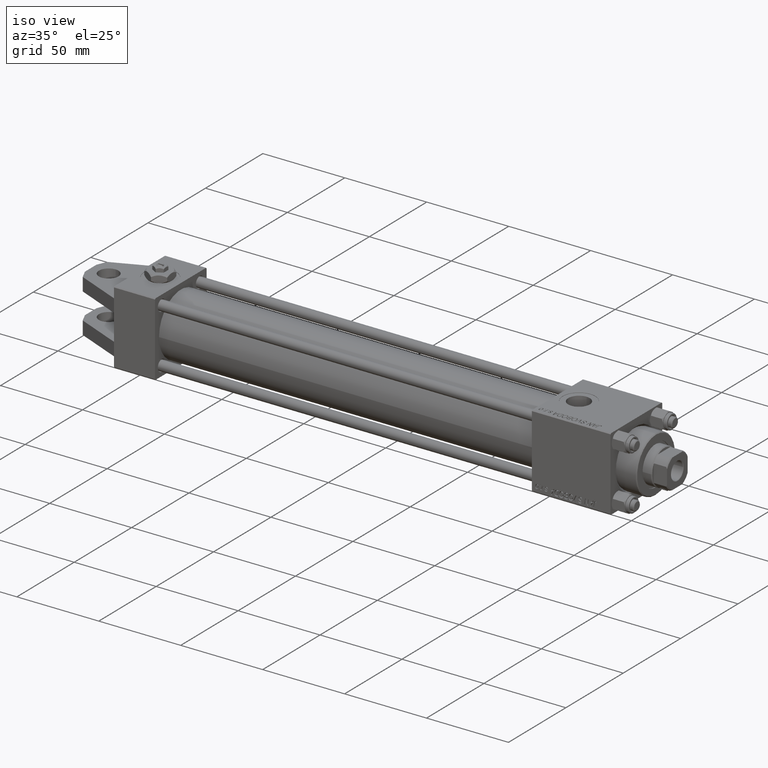
[diagram: clean part render]
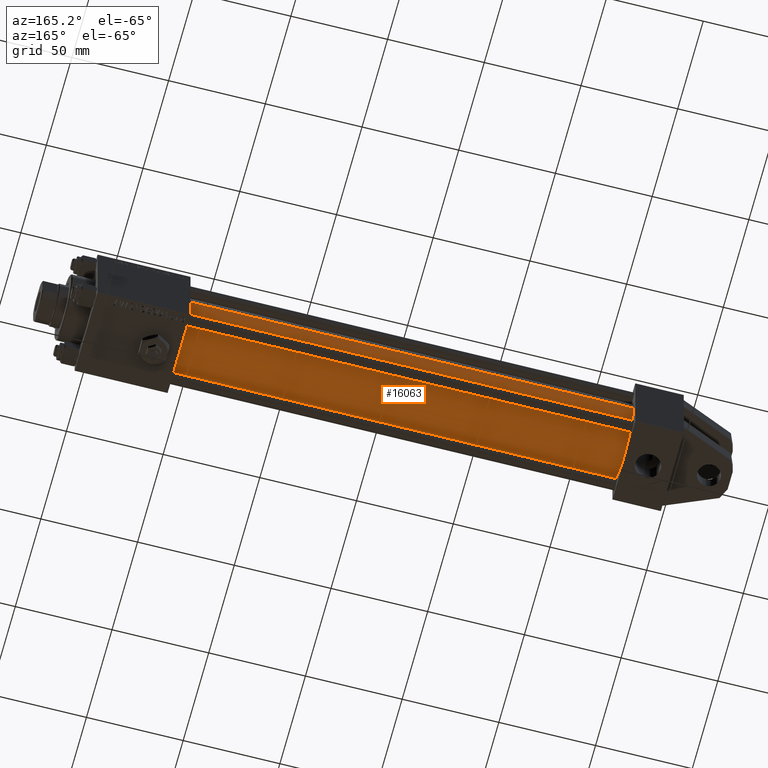
[diagram: tour spotlight — one face highlighted and labeled with its STEP entity id]
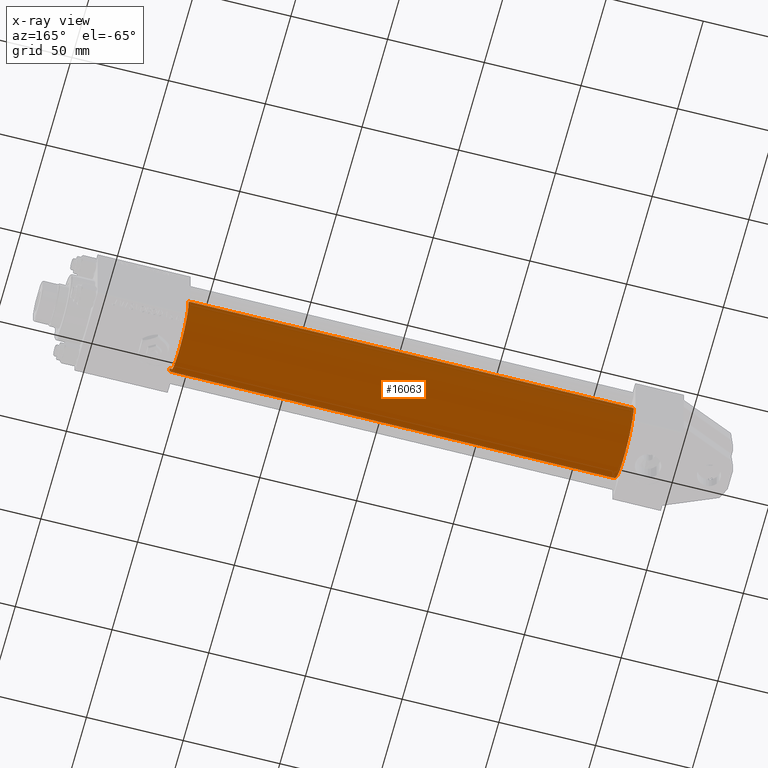
[diagram: x-ray of the same camera — body ghosted, this tour face saturated]
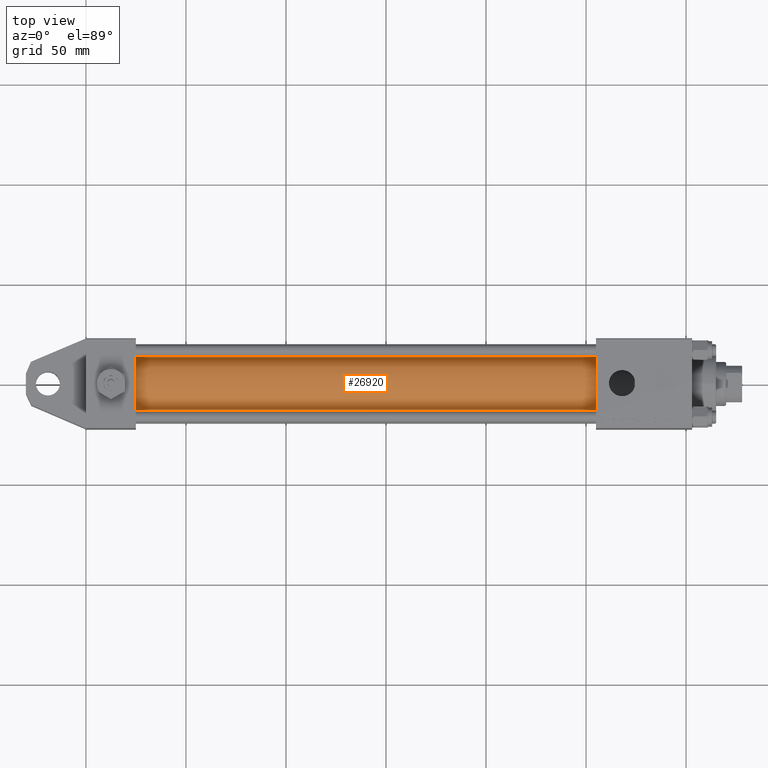
[diagram: tour spotlight — one face highlighted and labeled with its STEP entity id]
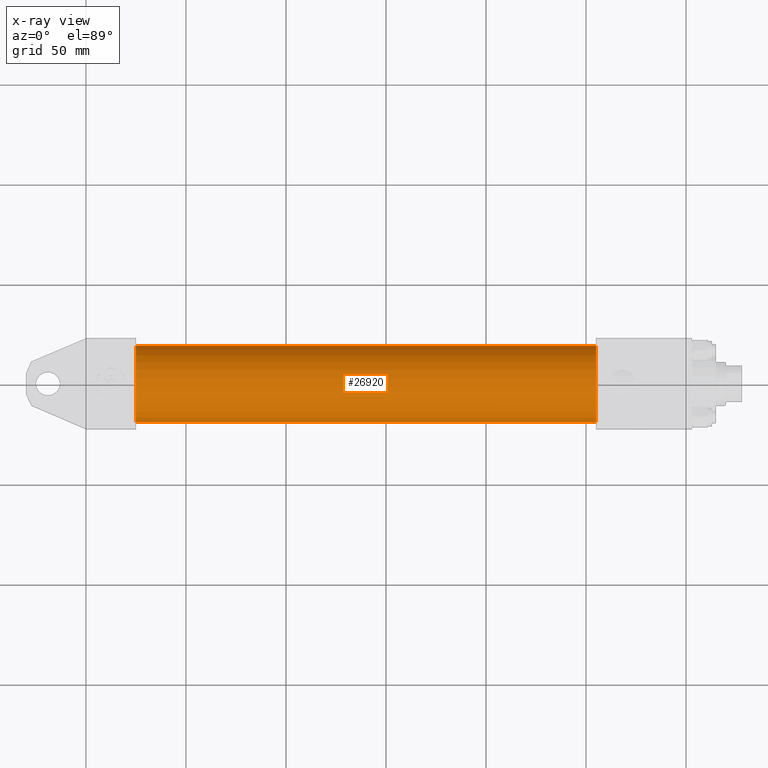
[diagram: x-ray of the same camera — body ghosted, this tour face saturated]
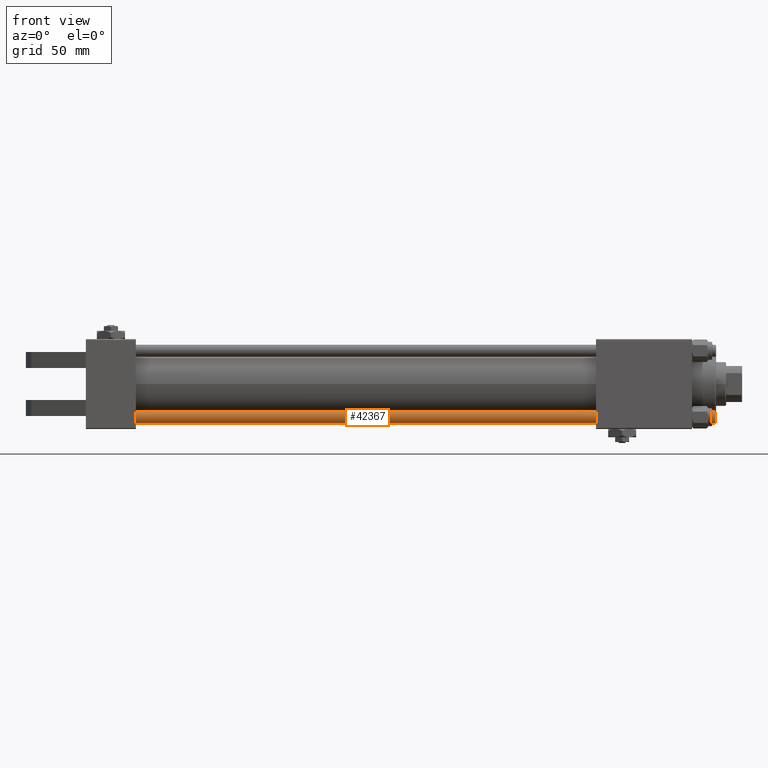
[diagram: tour spotlight — one face highlighted and labeled with its STEP entity id]
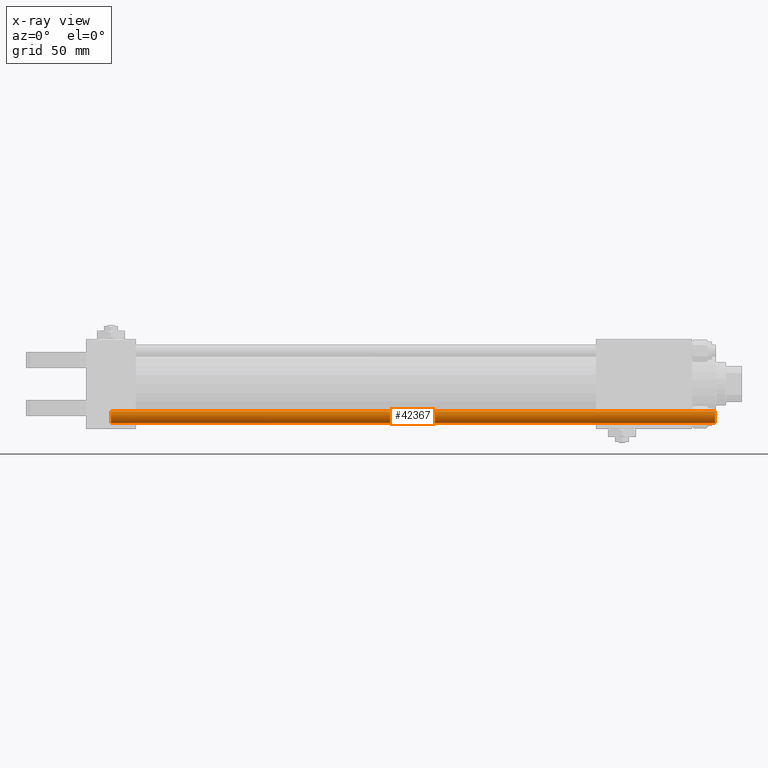
[diagram: x-ray of the same camera — body ghosted, this tour face saturated]
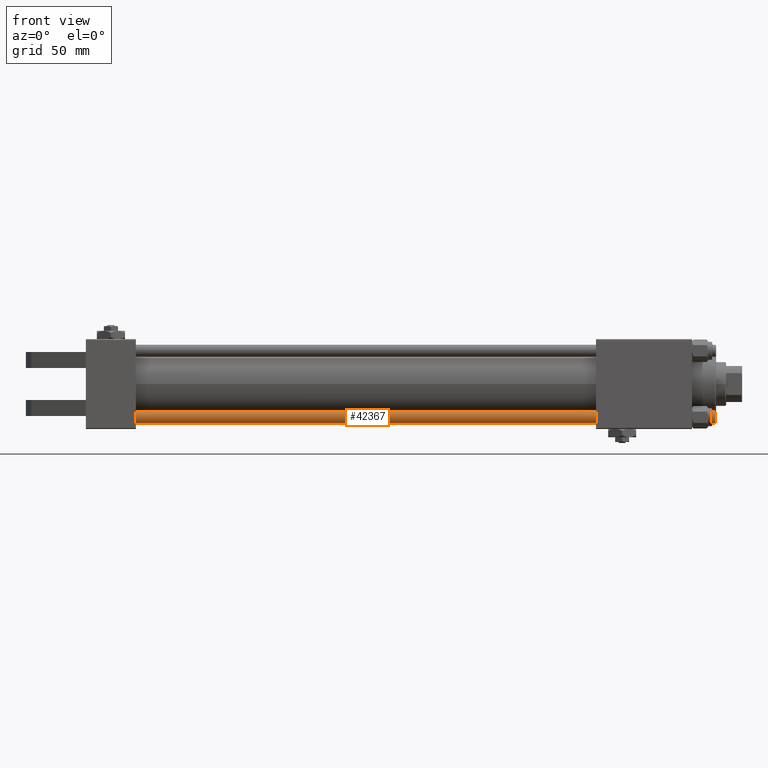
[diagram: tour spotlight — one face highlighted and labeled with its STEP entity id]
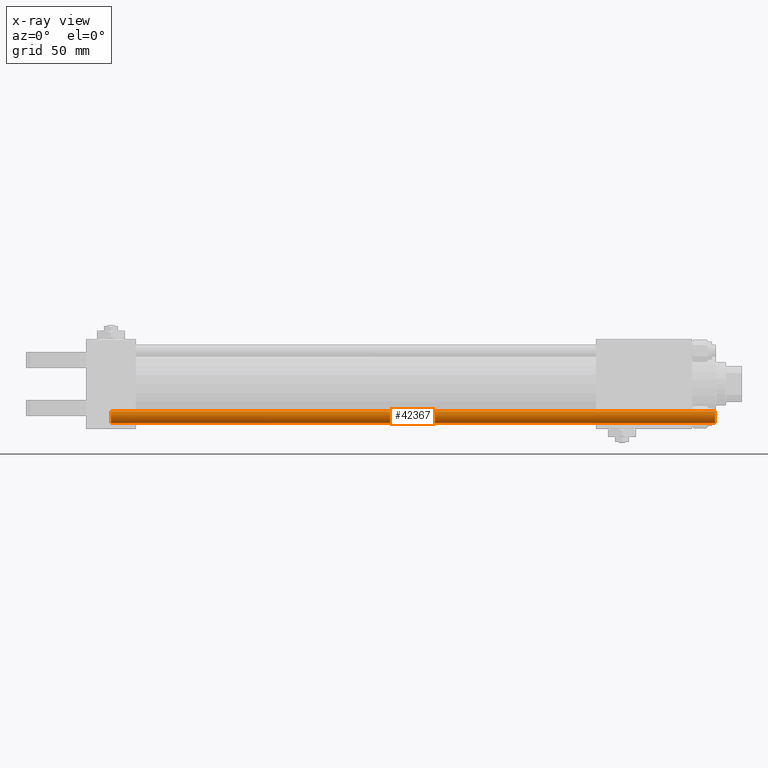
[diagram: x-ray of the same camera — body ghosted, this tour face saturated]
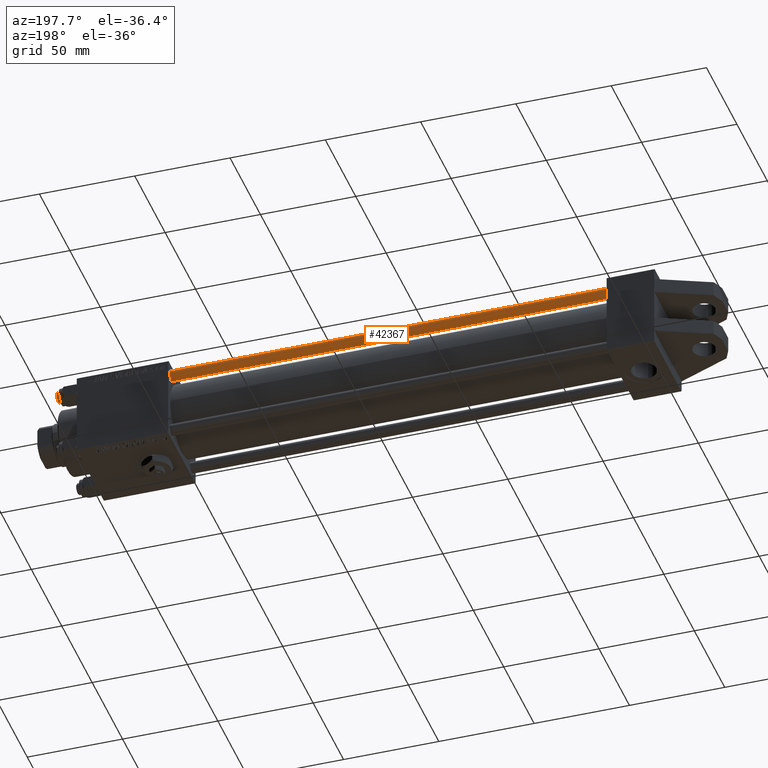
[diagram: tour spotlight — one face highlighted and labeled with its STEP entity id]
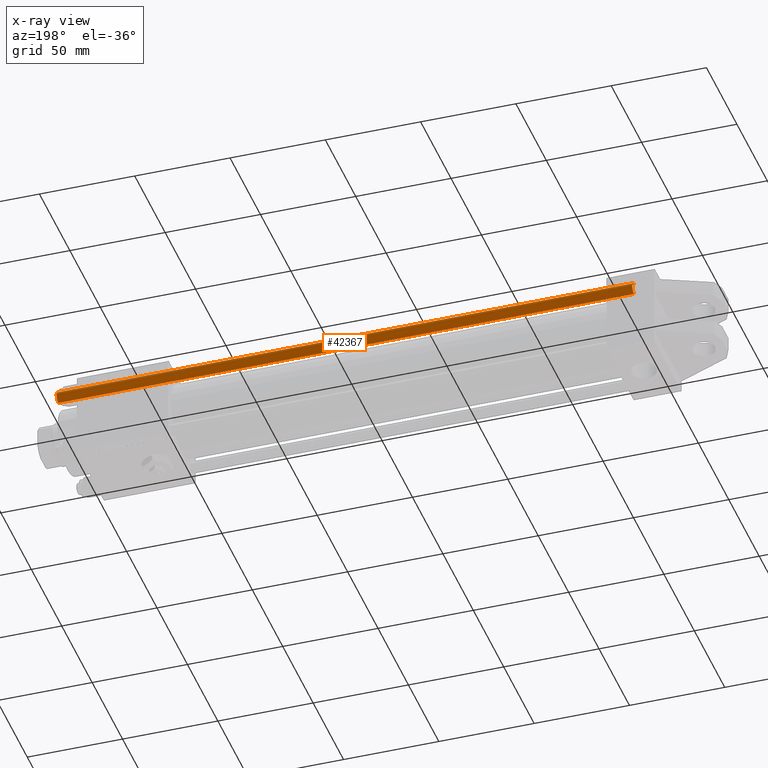
[diagram: x-ray of the same camera — body ghosted, this tour face saturated]
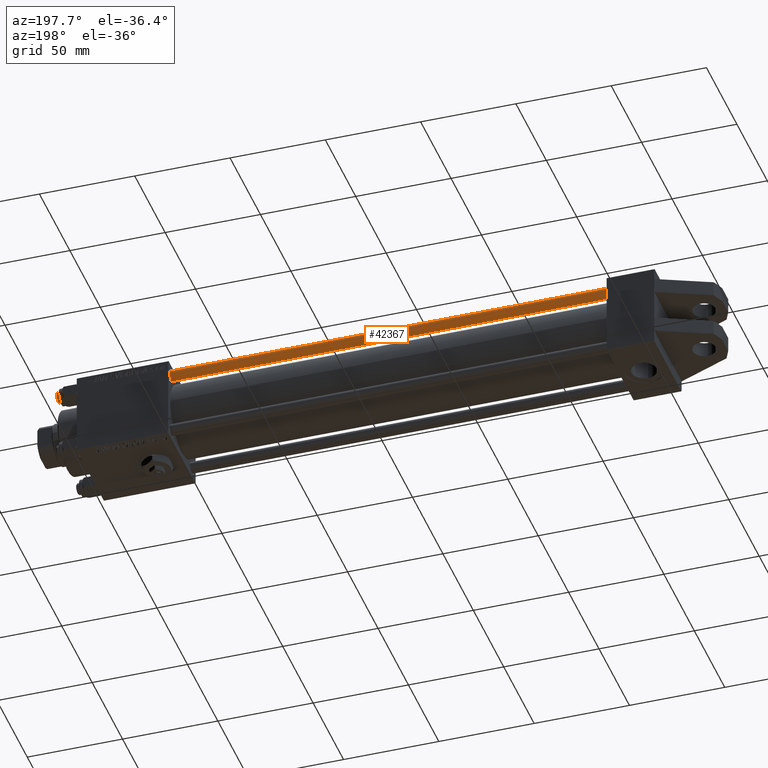
[diagram: tour spotlight — one face highlighted and labeled with its STEP entity id]
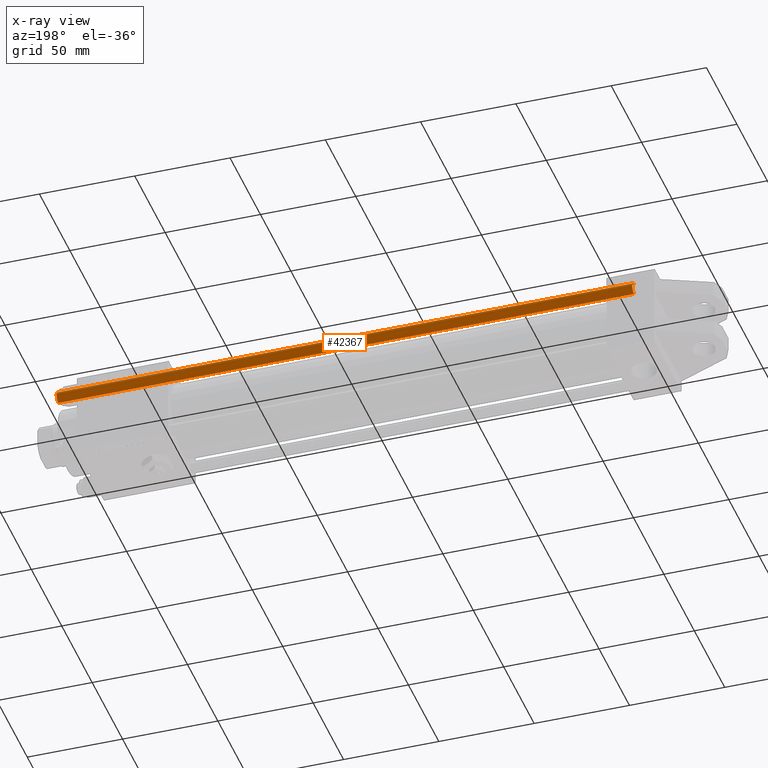
[diagram: x-ray of the same camera — body ghosted, this tour face saturated]
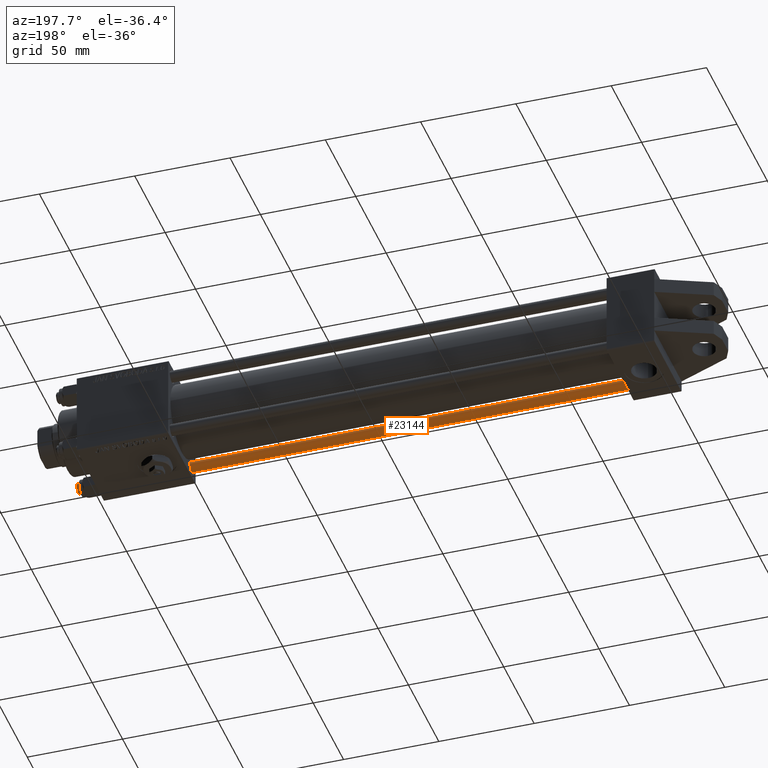
[diagram: tour spotlight — one face highlighted and labeled with its STEP entity id]
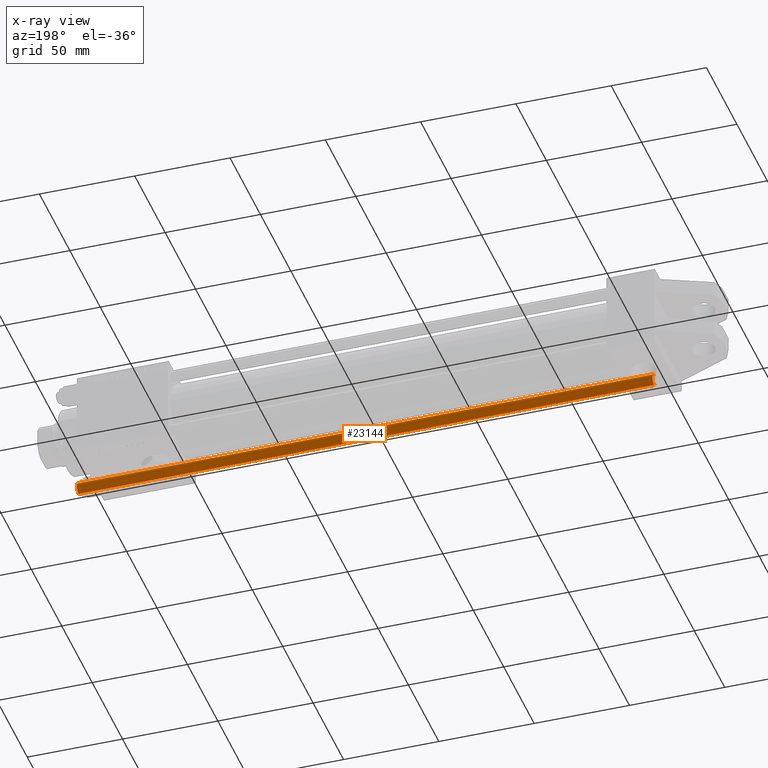
[diagram: x-ray of the same camera — body ghosted, this tour face saturated]
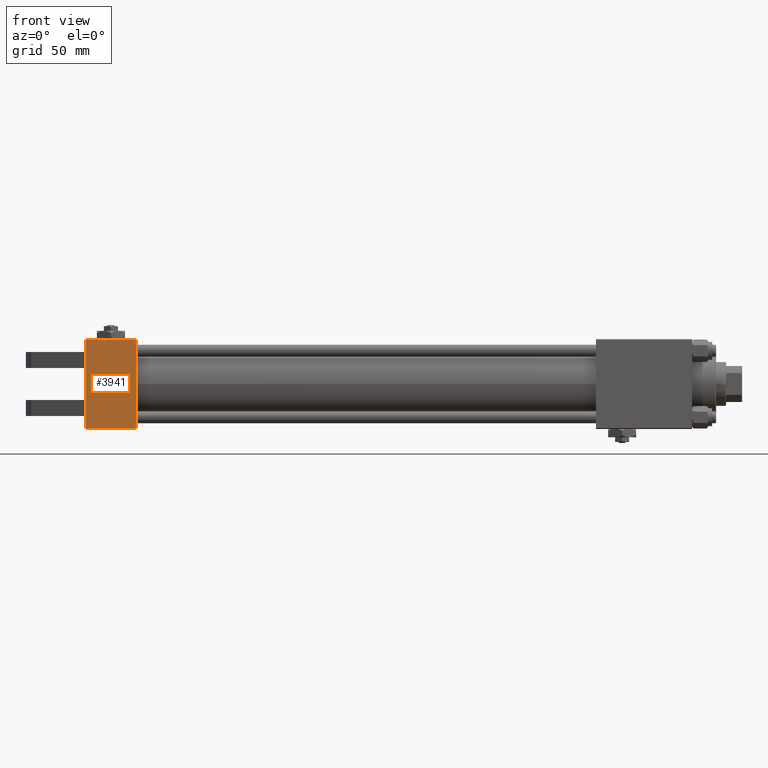
[diagram: tour spotlight — one face highlighted and labeled with its STEP entity id]
A machine part: a face-by-face anatomy tour. The part has 1228 B-rep faces; the first image is the clean iso view, then the 8 largest visible faces are spotlighted one at a time (largest first), each with its STEP entity span.

Face 1 — auxiliary view, entity #16063. An x-ray twin of the same camera follows (body ghosted, this face saturated) — the face is partly hidden behind the body. In plain terms, the highlighted cylindrical surface (partial cylindrical patch) has radius 19 mm, axis along (-1, -0, 0).
Definition (entity closure, byte-faithful):
#719 = VECTOR ( 'NONE', #48449, 1000.000000000000000 ) ;
#1466 = DIRECTION ( 'NONE',  ( -1.000000000000000000, -0.000000000000000000, -0.000000000000000000 ) ) ;
#3086 = DIRECTION ( 'NONE',  ( 1.000000000000000000, 0.000000000000000000, 0.000000000000000000 ) ) ;
#3374 = CARTESIAN_POINT ( 'NONE',  ( 255.0000000000000000, -3.469446951953614189E-15, 19.00000000000000000 ) ) ;
#4272 = CARTESIAN_POINT ( 'NONE',  ( 255.0000000000000000, -3.469446951953614189E-15, 19.00000000000000000 ) ) ;
#4696 = CIRCLE ( 'NONE', #44785, 19.00000000000000000 ) ;
#7952 = EDGE_CURVE ( 'NONE', #48835, #30972, #44279, .T. ) ;
#8276 = DIRECTION ( 'NONE',  ( 1.000000000000000000, -0.000000000000000000, 0.000000000000000000 ) ) ;
#10605 = CARTESIAN_POINT ( 'NONE',  ( 255.0000000000000000, -3.469446951953614189E-15, 0.000000000000000000 ) ) ;
#13182 = VERTEX_POINT ( 'NONE', #22178 ) ;
#15133 = DIRECTION ( 'NONE',  ( 0.000000000000000000, 0.000000000000000000, -1.000000000000000000 ) ) ;
#15384 = CARTESIAN_POINT ( 'NONE',  ( 255.0000000000000000, -3.469446951953614189E-15, 0.000000000000000000 ) ) ;
#16063 = ADVANCED_FACE ( 'NONE', ( #45384 ), #33898, .T. ) ;
#16200 = AXIS2_PLACEMENT_3D ( 'NONE', #15384, #3086, #15133 ) ;
#17607 = AXIS2_PLACEMENT_3D ( 'NONE', #10605, #1466, #21603 ) ;
#20339 = ORIENTED_EDGE ( 'NONE', *, *, #26104, .F. ) ;
#21603 = DIRECTION ( 'NONE',  ( 0.000000000000000000, 0.000000000000000000, 1.000000000000000000 ) ) ;
#22178 = CARTESIAN_POINT ( 'NONE',  ( 24.99999999999999289, -1.142618033573643218E-15, -19.00000000000000000 ) ) ;
#25476 = CARTESIAN_POINT ( 'NONE',  ( 255.0000000000000000, -1.142618033573643218E-15, -19.00000000000000000 ) ) ;
#26104 = EDGE_CURVE ( 'NONE', #51592, #48835, #49567, .T. ) ;
#26853 = ORIENTED_EDGE ( 'NONE', *, *, #7952, .F. ) ;
#27153 = EDGE_LOOP ( 'NONE', ( #20339, #42961, #38797, #26853 ) ) ;
#28152 = DIRECTION ( 'NONE',  ( 0.000000000000000000, 0.000000000000000000, 1.000000000000000000 ) ) ;
#30972 = VERTEX_POINT ( 'NONE', #46152 ) ;
#31310 = LINE ( 'NONE', #47232, #40757 ) ;
#33898 = CYLINDRICAL_SURFACE ( 'NONE', #17607, 19.00000000000000000 ) ;
#35250 = CARTESIAN_POINT ( 'NONE',  ( 24.99999999999999289, -3.469446951953614189E-15, 0.000000000000000000 ) ) ;
#35495 = DIRECTION ( 'NONE',  ( -1.000000000000000000, -0.000000000000000000, -0.000000000000000000 ) ) ;
#36465 = EDGE_CURVE ( 'NONE', #13182, #30972, #4696, .T. ) ;
#38797 = ORIENTED_EDGE ( 'NONE', *, *, #36465, .T. ) ;
#40757 = VECTOR ( 'NONE', #35495, 1000.000000000000000 ) ;
#42961 = ORIENTED_EDGE ( 'NONE', *, *, #44840, .T. ) ;
#44279 = LINE ( 'NONE', #4272, #719 ) ;
#44785 = AXIS2_PLACEMENT_3D ( 'NONE', #35250, #8276, #28152 ) ;
#44840 = EDGE_CURVE ( 'NONE', #51592, #13182, #31310, .T. ) ;
#45384 = FACE_OUTER_BOUND ( 'NONE', #27153, .T. ) ;
#46152 = CARTESIAN_POINT ( 'NONE',  ( 24.99999999999999289, -3.469446951953614189E-15, 19.00000000000000000 ) ) ;
#47232 = CARTESIAN_POINT ( 'NONE',  ( 255.0000000000000000, -1.142618033573643218E-15, -19.00000000000000000 ) ) ;
#48449 = DIRECTION ( 'NONE',  ( -1.000000000000000000, -0.000000000000000000, -0.000000000000000000 ) ) ;
#48835 = VERTEX_POINT ( 'NONE', #3374 ) ;
#49567 = CIRCLE ( 'NONE', #16200, 19.00000000000000000 ) ;
#51592 = VERTEX_POINT ( 'NONE', #25476 ) ;

Face 2 — top view, entity #26920. An x-ray twin of the same camera follows (body ghosted, this face saturated) — the face is partly hidden behind the body. In plain terms, the highlighted cylindrical surface (partial cylindrical patch) has radius 19 mm, axis along (-1, -0, 0).
Definition (entity closure, byte-faithful):
#261 = EDGE_CURVE ( 'NONE', #48835, #51592, #34003, .T. ) ;
#719 = VECTOR ( 'NONE', #48449, 1000.000000000000000 ) ;
#1030 = CARTESIAN_POINT ( 'NONE',  ( 255.0000000000000000, -3.469446951953614189E-15, 0.000000000000000000 ) ) ;
#1069 = ORIENTED_EDGE ( 'NONE', *, *, #7952, .T. ) ;
#2342 = DIRECTION ( 'NONE',  ( 0.000000000000000000, 0.000000000000000000, 1.000000000000000000 ) ) ;
#2550 = ORIENTED_EDGE ( 'NONE', *, *, #44840, .F. ) ;
#2798 = DIRECTION ( 'NONE',  ( 0.000000000000000000, 0.000000000000000000, -1.000000000000000000 ) ) ;
#3374 = CARTESIAN_POINT ( 'NONE',  ( 255.0000000000000000, -3.469446951953614189E-15, 19.00000000000000000 ) ) ;
#4272 = CARTESIAN_POINT ( 'NONE',  ( 255.0000000000000000, -3.469446951953614189E-15, 19.00000000000000000 ) ) ;
#7952 = EDGE_CURVE ( 'NONE', #48835, #30972, #44279, .T. ) ;
#9986 = EDGE_LOOP ( 'NONE', ( #2550, #48520, #1069, #46195 ) ) ;
#10203 = DIRECTION ( 'NONE',  ( 1.000000000000000000, -0.000000000000000000, 0.000000000000000000 ) ) ;
#13118 = AXIS2_PLACEMENT_3D ( 'NONE', #17977, #21647, #2798 ) ;
#13182 = VERTEX_POINT ( 'NONE', #22178 ) ;
#16985 = DIRECTION ( 'NONE',  ( -1.000000000000000000, -0.000000000000000000, -0.000000000000000000 ) ) ;
#17892 = AXIS2_PLACEMENT_3D ( 'NONE', #1030, #16985, #48854 ) ;
#17977 = CARTESIAN_POINT ( 'NONE',  ( 255.0000000000000000, -3.469446951953614189E-15, 0.000000000000000000 ) ) ;
#21647 = DIRECTION ( 'NONE',  ( 1.000000000000000000, 0.000000000000000000, 0.000000000000000000 ) ) ;
#22178 = CARTESIAN_POINT ( 'NONE',  ( 24.99999999999999289, -1.142618033573643218E-15, -19.00000000000000000 ) ) ;
#25476 = CARTESIAN_POINT ( 'NONE',  ( 255.0000000000000000, -1.142618033573643218E-15, -19.00000000000000000 ) ) ;
#26920 = ADVANCED_FACE ( 'NONE', ( #44688 ), #45207, .T. ) ;
#30972 = VERTEX_POINT ( 'NONE', #46152 ) ;
#31310 = LINE ( 'NONE', #47232, #40757 ) ;
#34003 = CIRCLE ( 'NONE', #13118, 19.00000000000000000 ) ;
#34886 = EDGE_CURVE ( 'NONE', #30972, #13182, #43903, .T. ) ;
#35495 = DIRECTION ( 'NONE',  ( -1.000000000000000000, -0.000000000000000000, -0.000000000000000000 ) ) ;
#40757 = VECTOR ( 'NONE', #35495, 1000.000000000000000 ) ;
#43903 = CIRCLE ( 'NONE', #50569, 19.00000000000000000 ) ;
#44279 = LINE ( 'NONE', #4272, #719 ) ;
#44688 = FACE_OUTER_BOUND ( 'NONE', #9986, .T. ) ;
#44840 = EDGE_CURVE ( 'NONE', #51592, #13182, #31310, .T. ) ;
#45207 = CYLINDRICAL_SURFACE ( 'NONE', #17892, 19.00000000000000000 ) ;
#46007 = CARTESIAN_POINT ( 'NONE',  ( 24.99999999999999289, -3.469446951953614189E-15, 0.000000000000000000 ) ) ;
#46152 = CARTESIAN_POINT ( 'NONE',  ( 24.99999999999999289, -3.469446951953614189E-15, 19.00000000000000000 ) ) ;
#46195 = ORIENTED_EDGE ( 'NONE', *, *, #34886, .T. ) ;
#47232 = CARTESIAN_POINT ( 'NONE',  ( 255.0000000000000000, -1.142618033573643218E-15, -19.00000000000000000 ) ) ;
#48449 = DIRECTION ( 'NONE',  ( -1.000000000000000000, -0.000000000000000000, -0.000000000000000000 ) ) ;
#48520 = ORIENTED_EDGE ( 'NONE', *, *, #261, .F. ) ;
#48835 = VERTEX_POINT ( 'NONE', #3374 ) ;
#48854 = DIRECTION ( 'NONE',  ( 0.000000000000000000, 0.000000000000000000, 1.000000000000000000 ) ) ;
#50569 = AXIS2_PLACEMENT_3D ( 'NONE', #46007, #10203, #2342 ) ;
#51592 = VERTEX_POINT ( 'NONE', #25476 ) ;

Face 3 — front view, entity #42367. An x-ray twin of the same camera follows (body ghosted, this face saturated) — the face is partly hidden behind the body. In plain terms, the highlighted cylindrical surface (edge-blend (fillet) strip) has radius 3 mm, axis along (1, 0, 0).
Definition (entity closure, byte-faithful):
#721 = CARTESIAN_POINT ( 'NONE',  ( -3.000000000000000444, 0.000000000000000000, 302.5000000000000000 ) ) ;
#2857 = CARTESIAN_POINT ( 'NONE',  ( 3.000000000000000444, 3.673940397442060361E-16, 302.5000000000000000 ) ) ;
#2894 = ORIENTED_EDGE ( 'NONE', *, *, #36135, .T. ) ;
#3563 = CARTESIAN_POINT ( 'NONE',  ( 3.000000000000000444, 3.673940397442060361E-16, 0.5000000000001114664 ) ) ;
#4389 = VERTEX_POINT ( 'NONE', #3563 ) ;
#5700 = CARTESIAN_POINT ( 'NONE',  ( 0.000000000000000000, 0.000000000000000000, 0.5000000000001114664 ) ) ;
#7911 = CARTESIAN_POINT ( 'NONE',  ( -3.000000000000000444, 0.000000000000000000, 0.5000000000001114664 ) ) ;
#9882 = DIRECTION ( 'NONE',  ( -0.000000000000000000, -0.000000000000000000, -1.000000000000000000 ) ) ;
#13226 = AXIS2_PLACEMENT_3D ( 'NONE', #5700, #21661, #37622 ) ;
#14700 = ORIENTED_EDGE ( 'NONE', *, *, #15810, .F. ) ;
#15335 = CIRCLE ( 'NONE', #22829, 3.000000000000000444 ) ;
#15810 = EDGE_CURVE ( 'NONE', #23053, #23559, #50397, .T. ) ;
#16894 = CARTESIAN_POINT ( 'NONE',  ( 0.000000000000000000, 0.000000000000000000, 302.5000000000000000 ) ) ;
#19516 = VERTEX_POINT ( 'NONE', #2857 ) ;
#20808 = DIRECTION ( 'NONE',  ( 1.000000000000000000, 0.000000000000000000, 0.000000000000000000 ) ) ;
#21661 = DIRECTION ( 'NONE',  ( -0.000000000000000000, -0.000000000000000000, 1.000000000000000000 ) ) ;
#21671 = CARTESIAN_POINT ( 'NONE',  ( -3.000000000000000444, 0.000000000000000000, 303.0000000000000000 ) ) ;
#21816 = DIRECTION ( 'NONE',  ( -0.000000000000000000, -0.000000000000000000, -1.000000000000000000 ) ) ;
#22829 = AXIS2_PLACEMENT_3D ( 'NONE', #16894, #35730, #20808 ) ;
#23053 = VERTEX_POINT ( 'NONE', #721 ) ;
#23559 = VERTEX_POINT ( 'NONE', #7911 ) ;
#25132 = EDGE_CURVE ( 'NONE', #23053, #19516, #15335, .T. ) ;
#28216 = AXIS2_PLACEMENT_3D ( 'NONE', #38289, #21816, #45604 ) ;
#29754 = LINE ( 'NONE', #41787, #48916 ) ;
#31148 = ORIENTED_EDGE ( 'NONE', *, *, #47310, .T. ) ;
#32489 = ORIENTED_EDGE ( 'NONE', *, *, #25132, .T. ) ;
#33606 = FACE_OUTER_BOUND ( 'NONE', #39556, .T. ) ;
#35730 = DIRECTION ( 'NONE',  ( 0.000000000000000000, 0.000000000000000000, -1.000000000000000000 ) ) ;
#35764 = CIRCLE ( 'NONE', #13226, 3.000000000000000444 ) ;
#36135 = EDGE_CURVE ( 'NONE', #19516, #4389, #29754, .T. ) ;
#37622 = DIRECTION ( 'NONE',  ( 1.000000000000000000, 0.000000000000000000, 0.000000000000000000 ) ) ;
#38289 = CARTESIAN_POINT ( 'NONE',  ( 0.000000000000000000, 0.000000000000000000, 303.0000000000000000 ) ) ;
#39556 = EDGE_LOOP ( 'NONE', ( #32489, #2894, #31148, #14700 ) ) ;
#41787 = CARTESIAN_POINT ( 'NONE',  ( 3.000000000000000444, 3.673940397442060361E-16, 303.0000000000000000 ) ) ;
#42367 = ADVANCED_FACE ( 'NONE', ( #33606 ), #49261, .T. ) ;
#43474 = VECTOR ( 'NONE', #45970, 1000.000000000000000 ) ;
#45604 = DIRECTION ( 'NONE',  ( -1.000000000000000000, 0.000000000000000000, 0.000000000000000000 ) ) ;
#45970 = DIRECTION ( 'NONE',  ( -0.000000000000000000, -0.000000000000000000, -1.000000000000000000 ) ) ;
#47310 = EDGE_CURVE ( 'NONE', #4389, #23559, #35764, .T. ) ;
#48916 = VECTOR ( 'NONE', #9882, 1000.000000000000000 ) ;
#49261 = CYLINDRICAL_SURFACE ( 'NONE', #28216, 3.000000000000000444 ) ;
#50397 = LINE ( 'NONE', #21671, #43474 ) ;

Face 4 — front view, entity #42367. An x-ray twin of the same camera follows (body ghosted, this face saturated) — the face is partly hidden behind the body. In plain terms, the highlighted cylindrical surface (edge-blend (fillet) strip) has radius 3 mm, axis along (-1, -0, 0).
Definition (entity closure, byte-faithful):
#721 = CARTESIAN_POINT ( 'NONE',  ( -3.000000000000000444, 0.000000000000000000, 302.5000000000000000 ) ) ;
#2857 = CARTESIAN_POINT ( 'NONE',  ( 3.000000000000000444, 3.673940397442060361E-16, 302.5000000000000000 ) ) ;
#2894 = ORIENTED_EDGE ( 'NONE', *, *, #36135, .T. ) ;
#3563 = CARTESIAN_POINT ( 'NONE',  ( 3.000000000000000444, 3.673940397442060361E-16, 0.5000000000001114664 ) ) ;
#4389 = VERTEX_POINT ( 'NONE', #3563 ) ;
#5700 = CARTESIAN_POINT ( 'NONE',  ( 0.000000000000000000, 0.000000000000000000, 0.5000000000001114664 ) ) ;
#7911 = CARTESIAN_POINT ( 'NONE',  ( -3.000000000000000444, 0.000000000000000000, 0.5000000000001114664 ) ) ;
#9882 = DIRECTION ( 'NONE',  ( -0.000000000000000000, -0.000000000000000000, -1.000000000000000000 ) ) ;
#13226 = AXIS2_PLACEMENT_3D ( 'NONE', #5700, #21661, #37622 ) ;
#14700 = ORIENTED_EDGE ( 'NONE', *, *, #15810, .F. ) ;
#15335 = CIRCLE ( 'NONE', #22829, 3.000000000000000444 ) ;
#15810 = EDGE_CURVE ( 'NONE', #23053, #23559, #50397, .T. ) ;
#16894 = CARTESIAN_POINT ( 'NONE',  ( 0.000000000000000000, 0.000000000000000000, 302.5000000000000000 ) ) ;
#19516 = VERTEX_POINT ( 'NONE', #2857 ) ;
#20808 = DIRECTION ( 'NONE',  ( 1.000000000000000000, 0.000000000000000000, 0.000000000000000000 ) ) ;
#21661 = DIRECTION ( 'NONE',  ( -0.000000000000000000, -0.000000000000000000, 1.000000000000000000 ) ) ;
#21671 = CARTESIAN_POINT ( 'NONE',  ( -3.000000000000000444, 0.000000000000000000, 303.0000000000000000 ) ) ;
#21816 = DIRECTION ( 'NONE',  ( -0.000000000000000000, -0.000000000000000000, -1.000000000000000000 ) ) ;
#22829 = AXIS2_PLACEMENT_3D ( 'NONE', #16894, #35730, #20808 ) ;
#23053 = VERTEX_POINT ( 'NONE', #721 ) ;
#23559 = VERTEX_POINT ( 'NONE', #7911 ) ;
#25132 = EDGE_CURVE ( 'NONE', #23053, #19516, #15335, .T. ) ;
#28216 = AXIS2_PLACEMENT_3D ( 'NONE', #38289, #21816, #45604 ) ;
#29754 = LINE ( 'NONE', #41787, #48916 ) ;
#31148 = ORIENTED_EDGE ( 'NONE', *, *, #47310, .T. ) ;
#32489 = ORIENTED_EDGE ( 'NONE', *, *, #25132, .T. ) ;
#33606 = FACE_OUTER_BOUND ( 'NONE', #39556, .T. ) ;
#35730 = DIRECTION ( 'NONE',  ( 0.000000000000000000, 0.000000000000000000, -1.000000000000000000 ) ) ;
#35764 = CIRCLE ( 'NONE', #13226, 3.000000000000000444 ) ;
#36135 = EDGE_CURVE ( 'NONE', #19516, #4389, #29754, .T. ) ;
#37622 = DIRECTION ( 'NONE',  ( 1.000000000000000000, 0.000000000000000000, 0.000000000000000000 ) ) ;
#38289 = CARTESIAN_POINT ( 'NONE',  ( 0.000000000000000000, 0.000000000000000000, 303.0000000000000000 ) ) ;
#39556 = EDGE_LOOP ( 'NONE', ( #32489, #2894, #31148, #14700 ) ) ;
#41787 = CARTESIAN_POINT ( 'NONE',  ( 3.000000000000000444, 3.673940397442060361E-16, 303.0000000000000000 ) ) ;
#42367 = ADVANCED_FACE ( 'NONE', ( #33606 ), #49261, .T. ) ;
#43474 = VECTOR ( 'NONE', #45970, 1000.000000000000000 ) ;
#45604 = DIRECTION ( 'NONE',  ( -1.000000000000000000, 0.000000000000000000, 0.000000000000000000 ) ) ;
#45970 = DIRECTION ( 'NONE',  ( -0.000000000000000000, -0.000000000000000000, -1.000000000000000000 ) ) ;
#47310 = EDGE_CURVE ( 'NONE', #4389, #23559, #35764, .T. ) ;
#48916 = VECTOR ( 'NONE', #9882, 1000.000000000000000 ) ;
#49261 = CYLINDRICAL_SURFACE ( 'NONE', #28216, 3.000000000000000444 ) ;
#50397 = LINE ( 'NONE', #21671, #43474 ) ;

Face 5 — auxiliary view, entity #42367. An x-ray twin of the same camera follows (body ghosted, this face saturated) — the face is partly hidden behind the body. In plain terms, the highlighted cylindrical surface (edge-blend (fillet) strip) has radius 3 mm, axis along (1, -0, -0).
Definition (entity closure, byte-faithful):
#721 = CARTESIAN_POINT ( 'NONE',  ( -3.000000000000000444, 0.000000000000000000, 302.5000000000000000 ) ) ;
#2857 = CARTESIAN_POINT ( 'NONE',  ( 3.000000000000000444, 3.673940397442060361E-16, 302.5000000000000000 ) ) ;
#2894 = ORIENTED_EDGE ( 'NONE', *, *, #36135, .T. ) ;
#3563 = CARTESIAN_POINT ( 'NONE',  ( 3.000000000000000444, 3.673940397442060361E-16, 0.5000000000001114664 ) ) ;
#4389 = VERTEX_POINT ( 'NONE', #3563 ) ;
#5700 = CARTESIAN_POINT ( 'NONE',  ( 0.000000000000000000, 0.000000000000000000, 0.5000000000001114664 ) ) ;
#7911 = CARTESIAN_POINT ( 'NONE',  ( -3.000000000000000444, 0.000000000000000000, 0.5000000000001114664 ) ) ;
#9882 = DIRECTION ( 'NONE',  ( -0.000000000000000000, -0.000000000000000000, -1.000000000000000000 ) ) ;
#13226 = AXIS2_PLACEMENT_3D ( 'NONE', #5700, #21661, #37622 ) ;
#14700 = ORIENTED_EDGE ( 'NONE', *, *, #15810, .F. ) ;
#15335 = CIRCLE ( 'NONE', #22829, 3.000000000000000444 ) ;
#15810 = EDGE_CURVE ( 'NONE', #23053, #23559, #50397, .T. ) ;
#16894 = CARTESIAN_POINT ( 'NONE',  ( 0.000000000000000000, 0.000000000000000000, 302.5000000000000000 ) ) ;
#19516 = VERTEX_POINT ( 'NONE', #2857 ) ;
#20808 = DIRECTION ( 'NONE',  ( 1.000000000000000000, 0.000000000000000000, 0.000000000000000000 ) ) ;
#21661 = DIRECTION ( 'NONE',  ( -0.000000000000000000, -0.000000000000000000, 1.000000000000000000 ) ) ;
#21671 = CARTESIAN_POINT ( 'NONE',  ( -3.000000000000000444, 0.000000000000000000, 303.0000000000000000 ) ) ;
#21816 = DIRECTION ( 'NONE',  ( -0.000000000000000000, -0.000000000000000000, -1.000000000000000000 ) ) ;
#22829 = AXIS2_PLACEMENT_3D ( 'NONE', #16894, #35730, #20808 ) ;
#23053 = VERTEX_POINT ( 'NONE', #721 ) ;
#23559 = VERTEX_POINT ( 'NONE', #7911 ) ;
#25132 = EDGE_CURVE ( 'NONE', #23053, #19516, #15335, .T. ) ;
#28216 = AXIS2_PLACEMENT_3D ( 'NONE', #38289, #21816, #45604 ) ;
#29754 = LINE ( 'NONE', #41787, #48916 ) ;
#31148 = ORIENTED_EDGE ( 'NONE', *, *, #47310, .T. ) ;
#32489 = ORIENTED_EDGE ( 'NONE', *, *, #25132, .T. ) ;
#33606 = FACE_OUTER_BOUND ( 'NONE', #39556, .T. ) ;
#35730 = DIRECTION ( 'NONE',  ( 0.000000000000000000, 0.000000000000000000, -1.000000000000000000 ) ) ;
#35764 = CIRCLE ( 'NONE', #13226, 3.000000000000000444 ) ;
#36135 = EDGE_CURVE ( 'NONE', #19516, #4389, #29754, .T. ) ;
#37622 = DIRECTION ( 'NONE',  ( 1.000000000000000000, 0.000000000000000000, 0.000000000000000000 ) ) ;
#38289 = CARTESIAN_POINT ( 'NONE',  ( 0.000000000000000000, 0.000000000000000000, 303.0000000000000000 ) ) ;
#39556 = EDGE_LOOP ( 'NONE', ( #32489, #2894, #31148, #14700 ) ) ;
#41787 = CARTESIAN_POINT ( 'NONE',  ( 3.000000000000000444, 3.673940397442060361E-16, 303.0000000000000000 ) ) ;
#42367 = ADVANCED_FACE ( 'NONE', ( #33606 ), #49261, .T. ) ;
#43474 = VECTOR ( 'NONE', #45970, 1000.000000000000000 ) ;
#45604 = DIRECTION ( 'NONE',  ( -1.000000000000000000, 0.000000000000000000, 0.000000000000000000 ) ) ;
#45970 = DIRECTION ( 'NONE',  ( -0.000000000000000000, -0.000000000000000000, -1.000000000000000000 ) ) ;
#47310 = EDGE_CURVE ( 'NONE', #4389, #23559, #35764, .T. ) ;
#48916 = VECTOR ( 'NONE', #9882, 1000.000000000000000 ) ;
#49261 = CYLINDRICAL_SURFACE ( 'NONE', #28216, 3.000000000000000444 ) ;
#50397 = LINE ( 'NONE', #21671, #43474 ) ;

Face 6 — auxiliary view, entity #42367. An x-ray twin of the same camera follows (body ghosted, this face saturated) — the face is partly hidden behind the body. In plain terms, the highlighted cylindrical surface (edge-blend (fillet) strip) has radius 3 mm, axis along (-1, 0, -0).
Definition (entity closure, byte-faithful):
#721 = CARTESIAN_POINT ( 'NONE',  ( -3.000000000000000444, 0.000000000000000000, 302.5000000000000000 ) ) ;
#2857 = CARTESIAN_POINT ( 'NONE',  ( 3.000000000000000444, 3.673940397442060361E-16, 302.5000000000000000 ) ) ;
#2894 = ORIENTED_EDGE ( 'NONE', *, *, #36135, .T. ) ;
#3563 = CARTESIAN_POINT ( 'NONE',  ( 3.000000000000000444, 3.673940397442060361E-16, 0.5000000000001114664 ) ) ;
#4389 = VERTEX_POINT ( 'NONE', #3563 ) ;
#5700 = CARTESIAN_POINT ( 'NONE',  ( 0.000000000000000000, 0.000000000000000000, 0.5000000000001114664 ) ) ;
#7911 = CARTESIAN_POINT ( 'NONE',  ( -3.000000000000000444, 0.000000000000000000, 0.5000000000001114664 ) ) ;
#9882 = DIRECTION ( 'NONE',  ( -0.000000000000000000, -0.000000000000000000, -1.000000000000000000 ) ) ;
#13226 = AXIS2_PLACEMENT_3D ( 'NONE', #5700, #21661, #37622 ) ;
#14700 = ORIENTED_EDGE ( 'NONE', *, *, #15810, .F. ) ;
#15335 = CIRCLE ( 'NONE', #22829, 3.000000000000000444 ) ;
#15810 = EDGE_CURVE ( 'NONE', #23053, #23559, #50397, .T. ) ;
#16894 = CARTESIAN_POINT ( 'NONE',  ( 0.000000000000000000, 0.000000000000000000, 302.5000000000000000 ) ) ;
#19516 = VERTEX_POINT ( 'NONE', #2857 ) ;
#20808 = DIRECTION ( 'NONE',  ( 1.000000000000000000, 0.000000000000000000, 0.000000000000000000 ) ) ;
#21661 = DIRECTION ( 'NONE',  ( -0.000000000000000000, -0.000000000000000000, 1.000000000000000000 ) ) ;
#21671 = CARTESIAN_POINT ( 'NONE',  ( -3.000000000000000444, 0.000000000000000000, 303.0000000000000000 ) ) ;
#21816 = DIRECTION ( 'NONE',  ( -0.000000000000000000, -0.000000000000000000, -1.000000000000000000 ) ) ;
#22829 = AXIS2_PLACEMENT_3D ( 'NONE', #16894, #35730, #20808 ) ;
#23053 = VERTEX_POINT ( 'NONE', #721 ) ;
#23559 = VERTEX_POINT ( 'NONE', #7911 ) ;
#25132 = EDGE_CURVE ( 'NONE', #23053, #19516, #15335, .T. ) ;
#28216 = AXIS2_PLACEMENT_3D ( 'NONE', #38289, #21816, #45604 ) ;
#29754 = LINE ( 'NONE', #41787, #48916 ) ;
#31148 = ORIENTED_EDGE ( 'NONE', *, *, #47310, .T. ) ;
#32489 = ORIENTED_EDGE ( 'NONE', *, *, #25132, .T. ) ;
#33606 = FACE_OUTER_BOUND ( 'NONE', #39556, .T. ) ;
#35730 = DIRECTION ( 'NONE',  ( 0.000000000000000000, 0.000000000000000000, -1.000000000000000000 ) ) ;
#35764 = CIRCLE ( 'NONE', #13226, 3.000000000000000444 ) ;
#36135 = EDGE_CURVE ( 'NONE', #19516, #4389, #29754, .T. ) ;
#37622 = DIRECTION ( 'NONE',  ( 1.000000000000000000, 0.000000000000000000, 0.000000000000000000 ) ) ;
#38289 = CARTESIAN_POINT ( 'NONE',  ( 0.000000000000000000, 0.000000000000000000, 303.0000000000000000 ) ) ;
#39556 = EDGE_LOOP ( 'NONE', ( #32489, #2894, #31148, #14700 ) ) ;
#41787 = CARTESIAN_POINT ( 'NONE',  ( 3.000000000000000444, 3.673940397442060361E-16, 303.0000000000000000 ) ) ;
#42367 = ADVANCED_FACE ( 'NONE', ( #33606 ), #49261, .T. ) ;
#43474 = VECTOR ( 'NONE', #45970, 1000.000000000000000 ) ;
#45604 = DIRECTION ( 'NONE',  ( -1.000000000000000000, 0.000000000000000000, 0.000000000000000000 ) ) ;
#45970 = DIRECTION ( 'NONE',  ( -0.000000000000000000, -0.000000000000000000, -1.000000000000000000 ) ) ;
#47310 = EDGE_CURVE ( 'NONE', #4389, #23559, #35764, .T. ) ;
#48916 = VECTOR ( 'NONE', #9882, 1000.000000000000000 ) ;
#49261 = CYLINDRICAL_SURFACE ( 'NONE', #28216, 3.000000000000000444 ) ;
#50397 = LINE ( 'NONE', #21671, #43474 ) ;

Face 7 — auxiliary view, entity #23144. An x-ray twin of the same camera follows (body ghosted, this face saturated) — the face is partly hidden behind the body. In plain terms, the highlighted cylindrical surface (edge-blend (fillet) strip) has radius 3 mm, axis along (-1, -0, 0).
Definition (entity closure, byte-faithful):
#206 = AXIS2_PLACEMENT_3D ( 'NONE', #47525, #43620, #13012 ) ;
#721 = CARTESIAN_POINT ( 'NONE',  ( -3.000000000000000444, 0.000000000000000000, 302.5000000000000000 ) ) ;
#2857 = CARTESIAN_POINT ( 'NONE',  ( 3.000000000000000444, 3.673940397442060361E-16, 302.5000000000000000 ) ) ;
#3563 = CARTESIAN_POINT ( 'NONE',  ( 3.000000000000000444, 3.673940397442060361E-16, 0.5000000000001114664 ) ) ;
#4389 = VERTEX_POINT ( 'NONE', #3563 ) ;
#7911 = CARTESIAN_POINT ( 'NONE',  ( -3.000000000000000444, 0.000000000000000000, 0.5000000000001114664 ) ) ;
#9306 = CIRCLE ( 'NONE', #51069, 3.000000000000000444 ) ;
#9882 = DIRECTION ( 'NONE',  ( -0.000000000000000000, -0.000000000000000000, -1.000000000000000000 ) ) ;
#11531 = ORIENTED_EDGE ( 'NONE', *, *, #20658, .T. ) ;
#13012 = DIRECTION ( 'NONE',  ( -1.000000000000000000, 0.000000000000000000, 0.000000000000000000 ) ) ;
#14163 = ORIENTED_EDGE ( 'NONE', *, *, #36135, .F. ) ;
#14294 = CARTESIAN_POINT ( 'NONE',  ( 0.000000000000000000, 0.000000000000000000, 0.5000000000001114664 ) ) ;
#14804 = DIRECTION ( 'NONE',  ( -0.000000000000000000, -0.000000000000000000, 1.000000000000000000 ) ) ;
#15095 = CARTESIAN_POINT ( 'NONE',  ( 0.000000000000000000, 0.000000000000000000, 302.5000000000000000 ) ) ;
#15655 = FACE_OUTER_BOUND ( 'NONE', #40515, .T. ) ;
#15810 = EDGE_CURVE ( 'NONE', #23053, #23559, #50397, .T. ) ;
#19516 = VERTEX_POINT ( 'NONE', #2857 ) ;
#20121 = EDGE_CURVE ( 'NONE', #19516, #23053, #41835, .T. ) ;
#20658 = EDGE_CURVE ( 'NONE', #23559, #4389, #9306, .T. ) ;
#21671 = CARTESIAN_POINT ( 'NONE',  ( -3.000000000000000444, 0.000000000000000000, 303.0000000000000000 ) ) ;
#22407 = ORIENTED_EDGE ( 'NONE', *, *, #15810, .T. ) ;
#23053 = VERTEX_POINT ( 'NONE', #721 ) ;
#23144 = ADVANCED_FACE ( 'NONE', ( #15655 ), #31603, .T. ) ;
#23192 = DIRECTION ( 'NONE',  ( 1.000000000000000000, 0.000000000000000000, 0.000000000000000000 ) ) ;
#23559 = VERTEX_POINT ( 'NONE', #7911 ) ;
#27500 = ORIENTED_EDGE ( 'NONE', *, *, #20121, .T. ) ;
#29754 = LINE ( 'NONE', #41787, #48916 ) ;
#30481 = DIRECTION ( 'NONE',  ( 1.000000000000000000, 0.000000000000000000, 0.000000000000000000 ) ) ;
#31038 = DIRECTION ( 'NONE',  ( 0.000000000000000000, 0.000000000000000000, -1.000000000000000000 ) ) ;
#31603 = CYLINDRICAL_SURFACE ( 'NONE', #206, 3.000000000000000444 ) ;
#36135 = EDGE_CURVE ( 'NONE', #19516, #4389, #29754, .T. ) ;
#40515 = EDGE_LOOP ( 'NONE', ( #14163, #27500, #22407, #11531 ) ) ;
#41787 = CARTESIAN_POINT ( 'NONE',  ( 3.000000000000000444, 3.673940397442060361E-16, 303.0000000000000000 ) ) ;
#41835 = CIRCLE ( 'NONE', #51002, 3.000000000000000444 ) ;
#43474 = VECTOR ( 'NONE', #45970, 1000.000000000000000 ) ;
#43620 = DIRECTION ( 'NONE',  ( -0.000000000000000000, -0.000000000000000000, -1.000000000000000000 ) ) ;
#45970 = DIRECTION ( 'NONE',  ( -0.000000000000000000, -0.000000000000000000, -1.000000000000000000 ) ) ;
#47525 = CARTESIAN_POINT ( 'NONE',  ( 0.000000000000000000, 0.000000000000000000, 303.0000000000000000 ) ) ;
#48916 = VECTOR ( 'NONE', #9882, 1000.000000000000000 ) ;
#50397 = LINE ( 'NONE', #21671, #43474 ) ;
#51002 = AXIS2_PLACEMENT_3D ( 'NONE', #15095, #31038, #23192 ) ;
#51069 = AXIS2_PLACEMENT_3D ( 'NONE', #14294, #14804, #30481 ) ;

Face 8 — front view, entity #3941. In plain terms, the highlighted planar face has unit normal (0, -1, -0).
Definition (entity closure, byte-faithful):
#244 = CARTESIAN_POINT ( 'NONE',  ( 25.00000000000000000, 21.99999999999999289, -22.49999999999999645 ) ) ;
#277 = ORIENTED_EDGE ( 'NONE', *, *, #39775, .F. ) ;
#1921 = CARTESIAN_POINT ( 'NONE',  ( 0.000000000000000000, 22.50000000000000000, -22.49999999999999645 ) ) ;
#2292 = LINE ( 'NONE', #27123, #5874 ) ;
#3064 = EDGE_LOOP ( 'NONE', ( #277, #23956, #24577, #22460, #37890, #35769, #17784, #45631 ) ) ;
#3525 = EDGE_CURVE ( 'NONE', #13491, #35497, #17712, .T. ) ;
#3597 = CARTESIAN_POINT ( 'NONE',  ( 0.000000000000000000, -8.000000000000000000, -22.50000000000000711 ) ) ;
#3853 = CARTESIAN_POINT ( 'NONE',  ( 25.00000000000000000, 21.99999999999999289, -22.49999999999999645 ) ) ;
#3936 = DIRECTION ( 'NONE',  ( 0.000000000000000000, 2.312964634635742957E-16, -1.000000000000000000 ) ) ;
#3941 = ADVANCED_FACE ( 'NONE', ( #27989 ), #26969, .T. ) ;
#4727 = LINE ( 'NONE', #44233, #38122 ) ;
#5840 = DIRECTION ( 'NONE',  ( 0.000000000000000000, -1.000000000000000000, -2.312964634635742957E-16 ) ) ;
#5874 = VECTOR ( 'NONE', #42569, 1000.000000000000000 ) ;
#7241 = VECTOR ( 'NONE', #25815, 1000.000000000000000 ) ;
#9833 = CARTESIAN_POINT ( 'NONE',  ( 25.00000000000000000, -21.99999999999997158, -22.50000000000000711 ) ) ;
#13491 = VERTEX_POINT ( 'NONE', #9833 ) ;
#13708 = LINE ( 'NONE', #1921, #35876 ) ;
#14213 = EDGE_CURVE ( 'NONE', #48295, #15860, #2292, .T. ) ;
#15860 = VERTEX_POINT ( 'NONE', #3597 ) ;
#17712 = LINE ( 'NONE', #37841, #7241 ) ;
#17784 = ORIENTED_EDGE ( 'NONE', *, *, #41245, .F. ) ;
#19205 = VERTEX_POINT ( 'NONE', #37715 ) ;
#20614 = VECTOR ( 'NONE', #39947, 1000.000000000000000 ) ;
#20695 = DIRECTION ( 'NONE',  ( 0.000000000000000000, -1.000000000000000000, -2.312964634635742957E-16 ) ) ;
#22460 = ORIENTED_EDGE ( 'NONE', *, *, #3525, .T. ) ;
#22500 = LINE ( 'NONE', #46270, #47997 ) ;
#23956 = ORIENTED_EDGE ( 'NONE', *, *, #40404, .T. ) ;
#24518 = CARTESIAN_POINT ( 'NONE',  ( 0.000000000000000000, 22.50000000000000000, -22.49999999999999645 ) ) ;
#24577 = ORIENTED_EDGE ( 'NONE', *, *, #29834, .T. ) ;
#25580 = LINE ( 'NONE', #37095, #34778 ) ;
#25815 = DIRECTION ( 'NONE',  ( -1.000000000000000000, 0.000000000000000000, 0.000000000000000000 ) ) ;
#26969 = PLANE ( 'NONE',  #30625 ) ;
#27123 = CARTESIAN_POINT ( 'NONE',  ( 0.000000000000000000, -16.00000000000000000, -22.50000000000000711 ) ) ;
#27989 = FACE_OUTER_BOUND ( 'NONE', #3064, .T. ) ;
#29834 = EDGE_CURVE ( 'NONE', #42032, #13491, #22500, .T. ) ;
#30625 = AXIS2_PLACEMENT_3D ( 'NONE', #30902, #3936, #35593 ) ;
#30902 = CARTESIAN_POINT ( 'NONE',  ( 25.00000000000000000, 22.50000000000000000, -22.49999999999999645 ) ) ;
#32880 = DIRECTION ( 'NONE',  ( 0.000000000000000000, -1.000000000000000000, -2.312964634635742957E-16 ) ) ;
#33034 = EDGE_CURVE ( 'NONE', #35139, #38493, #25580, .T. ) ;
#33402 = CARTESIAN_POINT ( 'NONE',  ( 0.000000000000000000, -16.00000000000000000, -22.50000000000000711 ) ) ;
#34023 = VECTOR ( 'NONE', #32880, 1000.000000000000000 ) ;
#34769 = CARTESIAN_POINT ( 'NONE',  ( 0.000000000000000000, 16.00000000000000000, -22.50000000000000711 ) ) ;
#34778 = VECTOR ( 'NONE', #44666, 1000.000000000000000 ) ;
#35139 = VERTEX_POINT ( 'NONE', #34769 ) ;
#35497 = VERTEX_POINT ( 'NONE', #40669 ) ;
#35593 = DIRECTION ( 'NONE',  ( 0.000000000000000000, 1.000000000000000000, 2.312964634635742957E-16 ) ) ;
#35769 = ORIENTED_EDGE ( 'NONE', *, *, #14213, .T. ) ;
#35876 = VECTOR ( 'NONE', #5840, 1000.000000000000000 ) ;
#37095 = CARTESIAN_POINT ( 'NONE',  ( 0.000000000000000000, 16.00000000000000000, -22.50000000000000711 ) ) ;
#37715 = CARTESIAN_POINT ( 'NONE',  ( 0.000000000000000000, 21.99999999999999289, -22.49999999999999645 ) ) ;
#37841 = CARTESIAN_POINT ( 'NONE',  ( 0.000000000000000000, -21.99999999999998579, -22.50000000000000711 ) ) ;
#37890 = ORIENTED_EDGE ( 'NONE', *, *, #50679, .F. ) ;
#38122 = VECTOR ( 'NONE', #20695, 1000.000000000000000 ) ;
#38493 = VERTEX_POINT ( 'NONE', #38933 ) ;
#38933 = CARTESIAN_POINT ( 'NONE',  ( 0.000000000000000000, 8.000000000000003553, -22.50000000000000000 ) ) ;
#39775 = EDGE_CURVE ( 'NONE', #19205, #35139, #4727, .T. ) ;
#39947 = DIRECTION ( 'NONE',  ( 1.000000000000000000, 0.000000000000000000, 0.000000000000000000 ) ) ;
#40404 = EDGE_CURVE ( 'NONE', #19205, #42032, #48785, .T. ) ;
#40669 = CARTESIAN_POINT ( 'NONE',  ( 0.000000000000000000, -21.99999999999997158, -22.50000000000000711 ) ) ;
#41245 = EDGE_CURVE ( 'NONE', #38493, #15860, #48546, .T. ) ;
#42032 = VERTEX_POINT ( 'NONE', #244 ) ;
#42368 = DIRECTION ( 'NONE',  ( 0.000000000000000000, -1.000000000000000000, -2.312964634635742957E-16 ) ) ;
#42569 = DIRECTION ( 'NONE',  ( -0.000000000000000000, 1.000000000000000000, -0.000000000000000000 ) ) ;
#44233 = CARTESIAN_POINT ( 'NONE',  ( 0.000000000000000000, 22.50000000000000000, -22.49999999999999645 ) ) ;
#44666 = DIRECTION ( 'NONE',  ( -0.000000000000000000, -1.000000000000000000, -0.000000000000000000 ) ) ;
#45631 = ORIENTED_EDGE ( 'NONE', *, *, #33034, .F. ) ;
#46270 = CARTESIAN_POINT ( 'NONE',  ( 25.00000000000000000, 22.50000000000000000, -22.49999999999999645 ) ) ;
#47997 = VECTOR ( 'NONE', #42368, 1000.000000000000000 ) ;
#48295 = VERTEX_POINT ( 'NONE', #33402 ) ;
#48546 = LINE ( 'NONE', #24518, #34023 ) ;
#48785 = LINE ( 'NONE', #3853, #20614 ) ;
#50679 = EDGE_CURVE ( 'NONE', #48295, #35497, #13708, .T. ) ;